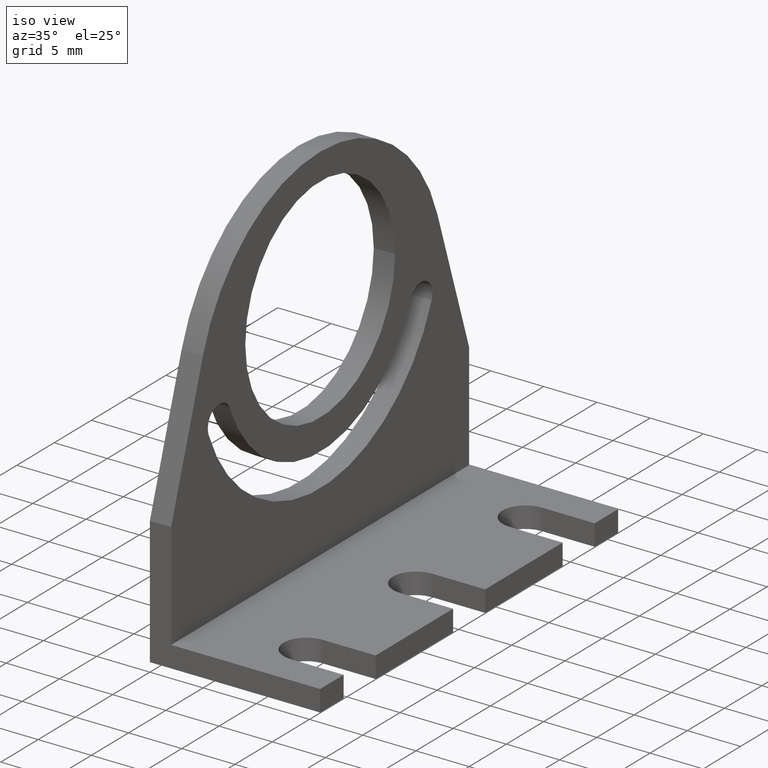
[diagram: clean part render]
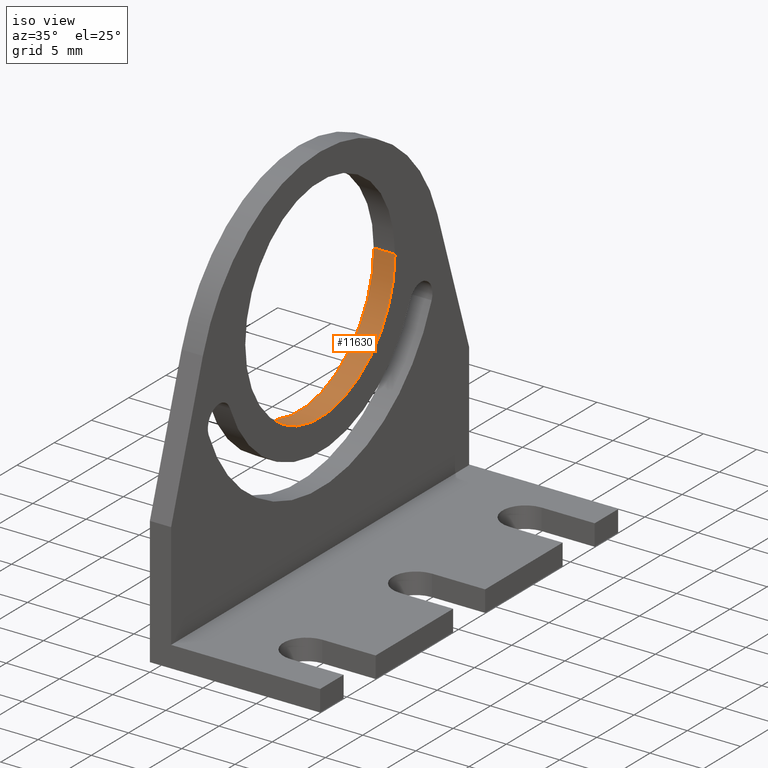
[diagram: same view with one face highlighted and labeled with its STEP entity id]
A machine part, iso view. The second image highlights one B-rep face of the part: STEP entity #11630.
In plain terms, the highlighted cylindrical surface (partial cylindrical patch) has radius 10.05 mm, axis along (-1, 0, 0).
Its self-contained STEP definition (entity closure, byte-faithful):
#6170=CARTESIAN_POINT('',(0.,21.7,0.));
#6180=DIRECTION('',(0.,0.,1.));
#6190=DIRECTION('',(-1.,0.,0.));
#6200=AXIS2_PLACEMENT_3D('',#6170,#6180,#6190);
#6210=CIRCLE('',#6200,10.05);
#6220=CARTESIAN_POINT('',(-10.05,21.7,0.));
#6230=VERTEX_POINT('',#6220);
#6240=CARTESIAN_POINT('',(10.05,21.7,0.));
#6250=VERTEX_POINT('',#6240);
#6260=EDGE_CURVE('',#6230,#6250,#6210,.T.);
#6970=CARTESIAN_POINT('',(-10.05,21.7,1.));
#6980=DIRECTION('',(0.,0.,-1.));
#6990=VECTOR('',#6980,1.);
#7000=LINE('',#6970,#6990);
#7010=CARTESIAN_POINT('',(-10.05,21.7,2.));
#7020=VERTEX_POINT('',#7010);
#7030=EDGE_CURVE('',#7020,#6230,#7000,.T.);
#7050=CARTESIAN_POINT('',(0.,21.7,2.));
#7060=DIRECTION('',(0.,0.,-1.));
#7070=DIRECTION('',(1.,0.,0.));
#7080=AXIS2_PLACEMENT_3D('',#7050,#7060,#7070);
#7090=CIRCLE('',#7080,10.05);
#7100=CARTESIAN_POINT('',(10.05,21.7,2.));
#7110=VERTEX_POINT('',#7100);
#7140=CARTESIAN_POINT('',(10.05,21.7,1.));
#7150=DIRECTION('',(0.,0.,-1.));
#7160=VECTOR('',#7150,1.);
#7170=LINE('',#7140,#7160);
#7180=EDGE_CURVE('',#7110,#6250,#7170,.T.);
#7840=EDGE_CURVE('',#7110,#7020,#7090,.T.);
#11520=CARTESIAN_POINT('',(0.,21.7,1.));
#11530=DIRECTION('',(0.,0.,-1.));
#11540=DIRECTION('',(-1.,0.,0.));
#11550=AXIS2_PLACEMENT_3D('',#11520,#11530,#11540);
#11560=CYLINDRICAL_SURFACE('',#11550,10.05);
#11570=ORIENTED_EDGE('',*,*,#7030,.F.);
#11580=ORIENTED_EDGE('',*,*,#6260,.F.);
#11590=ORIENTED_EDGE('',*,*,#7180,.T.);
#11600=ORIENTED_EDGE('',*,*,#7840,.F.);
#11610=EDGE_LOOP('',(#11600,#11590,#11580,#11570));
#11620=FACE_OUTER_BOUND('',#11610,.T.);
#11630=ADVANCED_FACE('',(#11620),#11560,.F.);